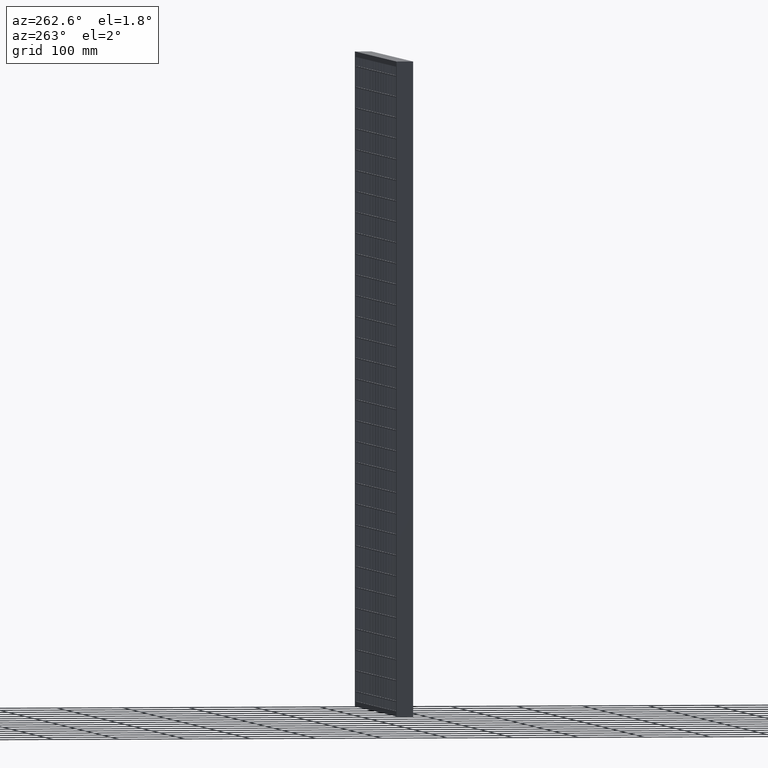
[diagram: clean part render]
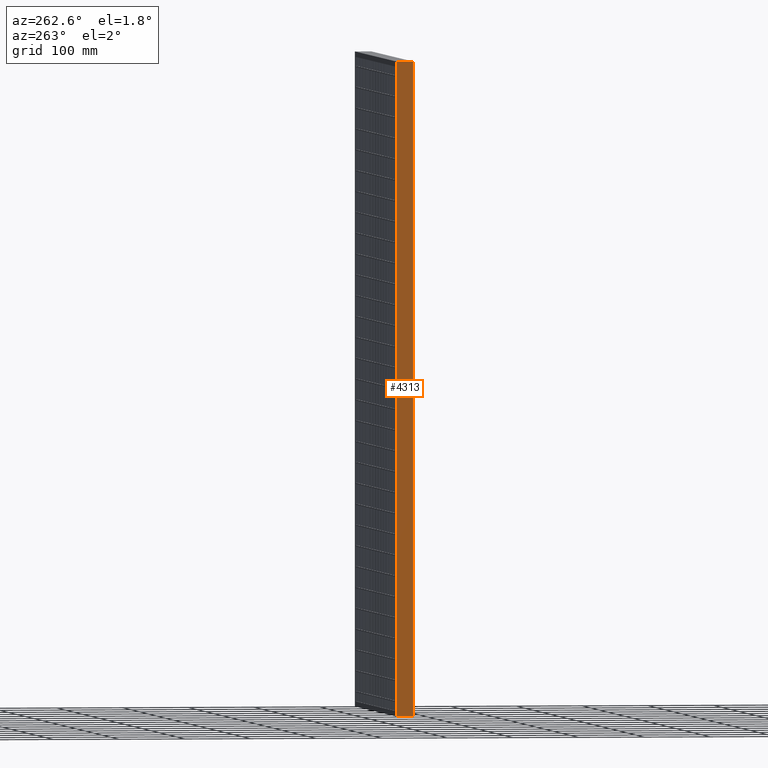
[diagram: same view with one face highlighted and labeled with its STEP entity id]
A machine part, auxiliary view. The second image highlights one B-rep face of the part: STEP entity #4313.
In plain terms, the highlighted planar face has unit normal (-1, -0, 0).
Its self-contained STEP definition (entity closure, byte-faithful):
#543 = CARTESIAN_POINT ( 'NONE',  ( -2.347239698365760600E-015, 4.166666666666667900, 0.0000000000000000000 ) ) ;
#965 = FACE_OUTER_BOUND ( 'NONE', #59859, .T. ) ;
#4313 = ADVANCED_FACE ( 'NONE', ( #965 ), #37713, .T. ) ;
#5273 = ORIENTED_EDGE ( 'NONE', *, *, #55431, .T. ) ;
#5597 = CARTESIAN_POINT ( 'NONE',  ( -1.794228791270285600E-028, 12.50000000000000000, -1.876249176170376600E-014 ) ) ;
#10273 = VERTEX_POINT ( 'NONE', #51437 ) ;
#15941 = CARTESIAN_POINT ( 'NONE',  ( 2.755455298081544800E-015, -12.50000000000000000, -990.0000000000000000 ) ) ;
#17750 = DIRECTION ( 'NONE',  ( -0.0000000000000000000, -0.0000000000000000000, 1.000000000000000000 ) ) ;
#19120 = LINE ( 'NONE', #21518, #63880 ) ;
#21113 = DIRECTION ( 'NONE',  ( -1.000000000000000000, -3.061616997868383100E-016, 0.0000000000000000000 ) ) ;
#21513 = AXIS2_PLACEMENT_3D ( 'NONE', #53866, #21113, #64468 ) ;
#21518 = CARTESIAN_POINT ( 'NONE',  ( 2.755455298081544800E-015, -12.50000000000000000, -1042.497618993626700 ) ) ;
#22999 = VERTEX_POINT ( 'NONE', #34177 ) ;
#23678 = ORIENTED_EDGE ( 'NONE', *, *, #50220, .T. ) ;
#29861 = LINE ( 'NONE', #55799, #40234 ) ;
#32733 = CARTESIAN_POINT ( 'NONE',  ( 2.041077998578923800E-016, -4.166666666666667900, 0.0000000000000000000 ) ) ;
#34177 = CARTESIAN_POINT ( 'NONE',  ( 1.377727649040772400E-015, -12.50000000000000000, -1.110223024625156500E-013 ) ) ;
#35967 = LINE ( 'NONE', #48957, #63551 ) ;
#37713 = PLANE ( 'NONE',  #21513 ) ;
#40234 = VECTOR ( 'NONE', #17750, 1000.000000000000000 ) ;
#43172 = DIRECTION ( 'NONE',  ( 3.061616997868383100E-016, -1.000000000000000000, 3.061616997868383100E-016 ) ) ;
#43446 = DIRECTION ( 'NONE',  ( -0.0000000000000000000, -0.0000000000000000000, 1.000000000000000000 ) ) ;
#43829 = CARTESIAN_POINT ( 'NONE',  ( 1.377727649040772400E-015, -12.50000000000000000, -1.110223024625156500E-013 ) ) ;
#48957 = CARTESIAN_POINT ( 'NONE',  ( -4.898587196589417800E-015, 12.50000000000001600, -990.0000000000000000 ) ) ;
#49933 = VERTEX_POINT ( 'NONE', #69792 ) ;
#50220 = EDGE_CURVE ( 'NONE', #22999, #49933, #62748, .T. ) ;
#51437 = CARTESIAN_POINT ( 'NONE',  ( -4.898587196589413000E-015, 12.50000000000000000, -990.0000000000000000 ) ) ;
#52421 = EDGE_CURVE ( 'NONE', #70412, #22999, #19120, .T. ) ;
#53866 = CARTESIAN_POINT ( 'NONE',  ( -4.898587196589413000E-015, 12.50000000000000000, -1042.497618993626700 ) ) ;
#55431 = EDGE_CURVE ( 'NONE', #10273, #70412, #35967, .T. ) ;
#55799 = CARTESIAN_POINT ( 'NONE',  ( -4.898587196589413000E-015, 12.50000000000000000, -1042.497618993626700 ) ) ;
#57716 = ORIENTED_EDGE ( 'NONE', *, *, #52421, .T. ) ;
#59859 = EDGE_LOOP ( 'NONE', ( #57716, #23678, #61109, #5273 ) ) ;
#61109 = ORIENTED_EDGE ( 'NONE', *, *, #70119, .F. ) ;
#62748 = B_SPLINE_CURVE_WITH_KNOTS ( 'NONE', 3,
 ( #43829, #32733, #543, #5597 ),
 .UNSPECIFIED., .F., .F.,
 ( 4, 4 ),
 ( 0.0000000000000000000, 1.000000000000000000 ),
 .UNSPECIFIED. ) ;
#63551 = VECTOR ( 'NONE', #43172, 1000.000000000000000 ) ;
#63880 = VECTOR ( 'NONE', #43446, 1000.000000000000000 ) ;
#64468 = DIRECTION ( 'NONE',  ( 3.061616997868383100E-016, -1.000000000000000000, 0.0000000000000000000 ) ) ;
#69792 = CARTESIAN_POINT ( 'NONE',  ( -1.794228791270285600E-028, 12.50000000000000000, -1.876249176170376600E-014 ) ) ;
#70119 = EDGE_CURVE ( 'NONE', #10273, #49933, #29861, .T. ) ;
#70412 = VERTEX_POINT ( 'NONE', #15941 ) ;